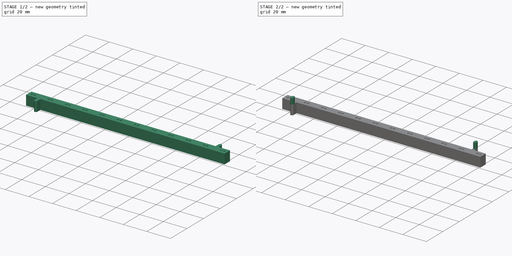
[diagram: build sequence overview — one tinted view per stage of 2, left to right]
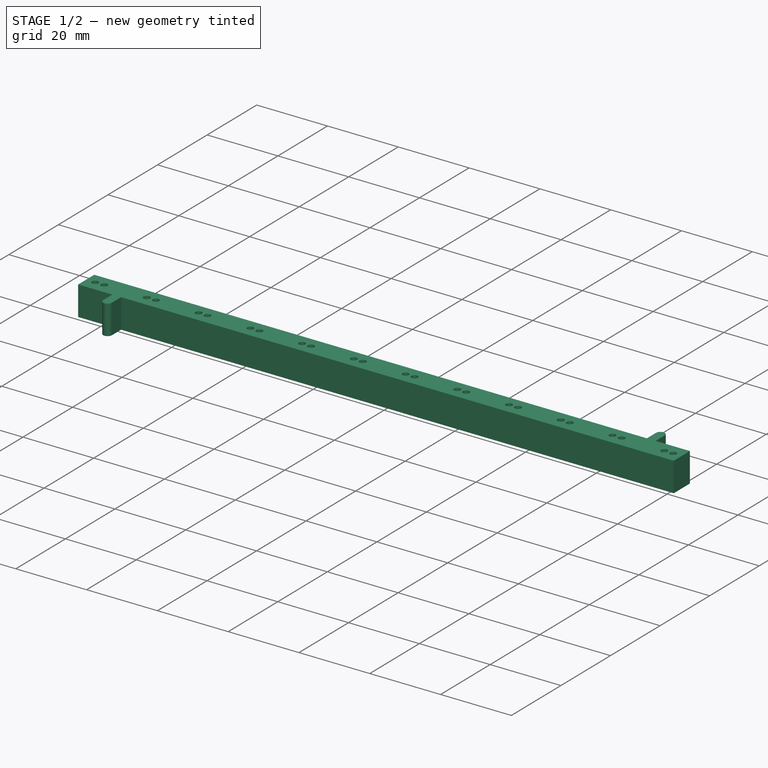
[diagram: stage 1 of 2 — iso view after this stage's code; geometry added in this stage tinted green]
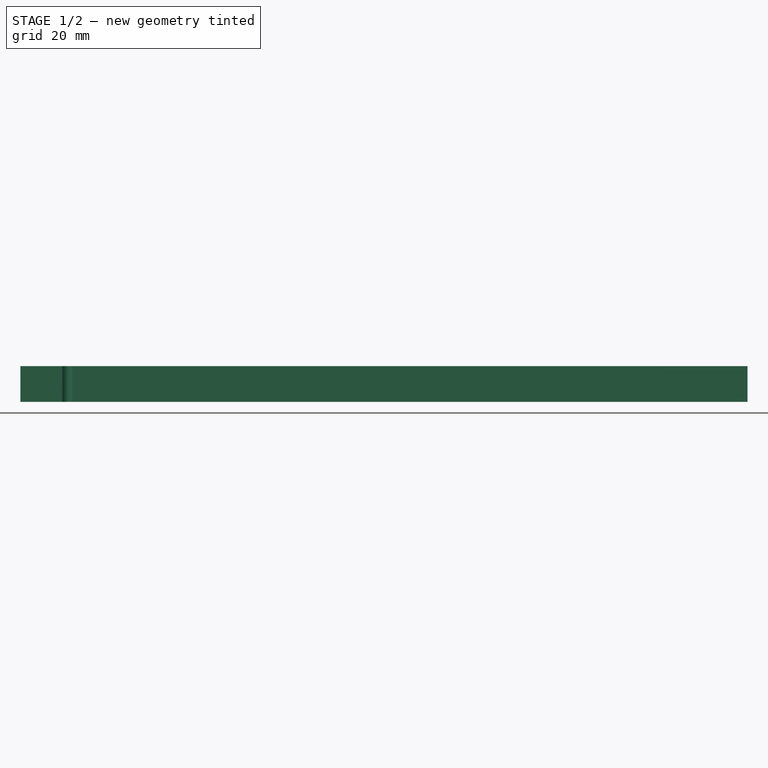
[diagram: stage 1 of 2 — front view after this stage's code; geometry added in this stage tinted green]
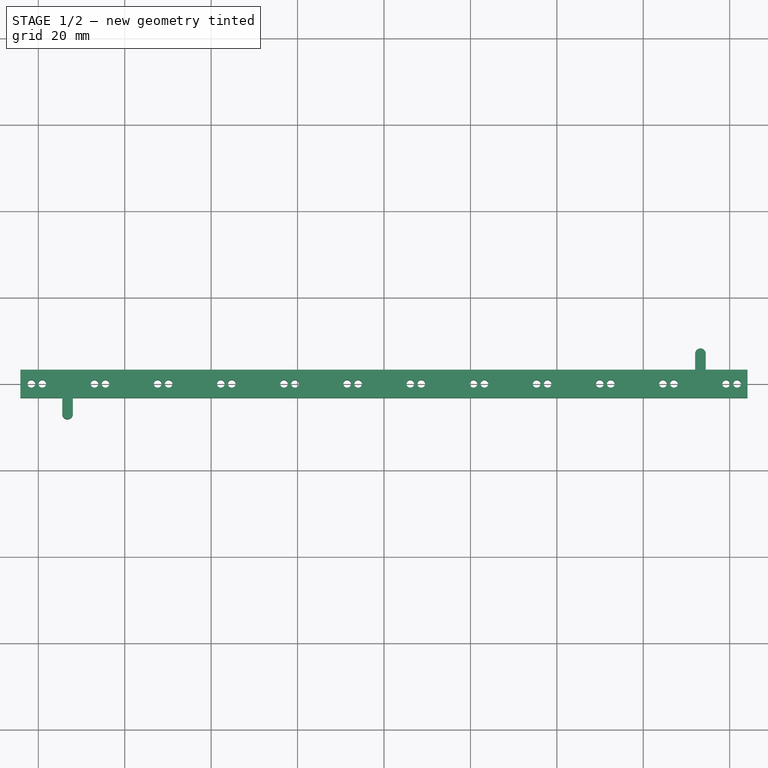
[diagram: stage 1 of 2 — top view after this stage's code; geometry added in this stage tinted green]
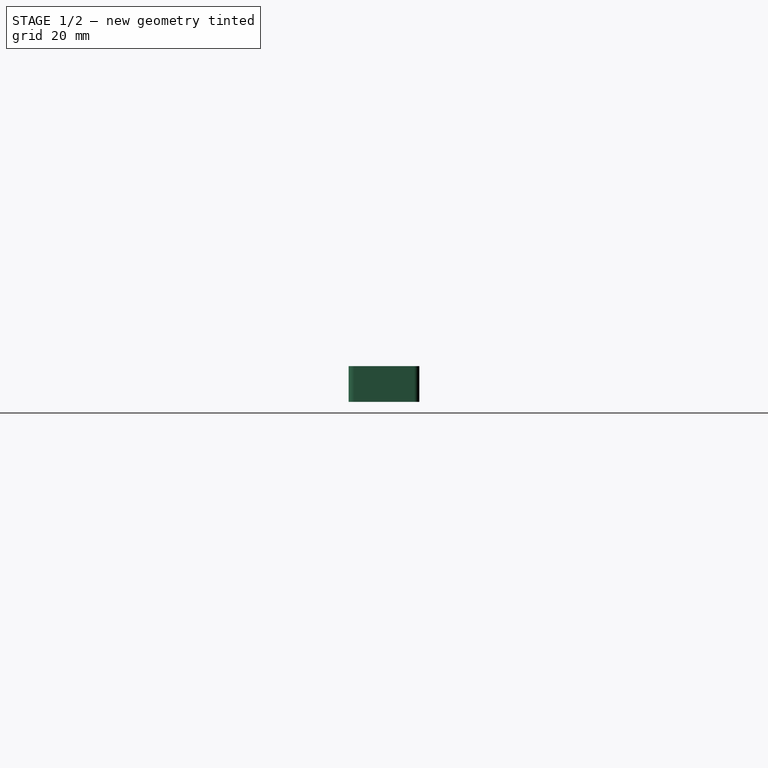
[diagram: stage 1 of 2 — right view after this stage's code; geometry added in this stage tinted green]
FCSTD DOCUMENT  (FreeCAD 0.19R24276 (Git))
Label: distance-columns-led
License: All rights reserved
LicenseURL: http://en.wikipedia.org/wiki/All_rights_reserved
objects: Sketcher::SketchObject×4, PartDesign::Pad×2, PartDesign::Pocket×2, PartDesign::Body×1
note: 13 computed .brp shape members not serialized (recipe doc carries the construction recipe); baked Part::Feature solids carry a one-line shape summary decoded from their .brp

FEATURE [Sketcher::SketchObject] Sketch  label="base"
  FullyConstrained = false
  MapMode = 5
  Support = -> [XY_Plane]
  sketch-geometry (12):
    g0: LineSegment StartX=-84.1375 StartY=3.25 StartZ=0 EndX=72 EndY=3.25 EndZ=0
    g1: LineSegment StartX=84.1375 StartY=3.25 StartZ=0 EndX=84.1375 EndY=-3.25 EndZ=0
    g2: LineSegment StartX=84.1375 StartY=-3.25 StartZ=0 EndX=-72 EndY=-3.25 EndZ=0
    g3: LineSegment StartX=-84.1375 StartY=-3.25 StartZ=0 EndX=-84.1375 EndY=3.25 EndZ=0
    g4: LineSegment StartX=74.47 StartY=3.25001 StartZ=0 EndX=84.1375 EndY=3.25 EndZ=0
    g5: LineSegment StartX=72 StartY=3.25 StartZ=0 EndX=72 EndY=6.94 EndZ=0
    g6: LineSegment StartX=74.47 StartY=6.94001 StartZ=0 EndX=74.47 EndY=3.25001 EndZ=0
    g7: LineSegment StartX=-74.47 StartY=-6.94 StartZ=0 EndX=-74.47 EndY=-3.25 EndZ=0
    g8: LineSegment StartX=-74.47 StartY=-3.25 StartZ=0 EndX=-84.1375 EndY=-3.25 EndZ=0
    g9: LineSegment StartX=-72 StartY=-3.25 StartZ=0 EndX=-72 EndY=-6.94 EndZ=0
    g10: ArcOfCircle CenterX=73.235 CenterY=6.94 CenterZ=0 NormalX=0 NormalY=0 NormalZ=1 AngleXU=0 Radius=1.235 StartAngle=1.18828e-05 EndAngle=3.14159
    g11: ArcOfCircle CenterX=-73.235 CenterY=-6.94 CenterZ=0 NormalX=0 NormalY=0 NormalZ=1 AngleXU=0 Radius=1.235 StartAngle=3.14159 EndAngle=6.28319
  constraints (35):
    c: Coincident(g4,g1)
    c: Coincident(g1,g2)
    c: Coincident(g8,g3)
    c: Coincident(g3,g0)
    c: Horizontal(g0)
    c: Horizontal(g2)
    c: Vertical(g1)
    c: Vertical(g3)
    c: DistanceX(g0,g-1) = 84.1375
    c: DistanceX(g-1,g4) = 84.1375
    c: DistanceY(g-1,g0) = 3.25
    c: DistanceY(g8,g-1) = 3.25
    c: Coincident(g5,g0)
    c: Vertical(g5)
    c: Coincident(g6,g4)
    c: Vertical(g6)
    c: DistanceX(g-1,g5) = 72
    c: Vertical(g7)
    c: DistanceX(g7,g9) = 2.47
    c: DistanceX(g5,g6) = 2.47
    c: DistanceX(g9,g-1) = 72
    c: Coincident(g8,g7)
    c: Tangent(g2,g8)
    c: Coincident(g9,g2)
    c: Vertical(g9)
    c: DistanceY(g9,g9) = 3.69
    c: DistanceY(g7,g7) = 3.69
    c: DistanceY(g5,g5) = 3.69
    c: DistanceY(g6,g6) = 3.69
    c: Coincident(g10,g5)
    c: Coincident(g10,g6)
    c: Coincident(g11,g7)
    c: Coincident(g11,g9)
    c: Radius(g10) = 1.235
    c: Radius(g11) = 1.235
FEATURE [PartDesign::Pad] Pad  label="base_pad"
  Direction = (1,1,1)
  Length = 8.3
  Length2 = 100
  Profile = -> Sketch
  Type = 0
FEATURE [Sketcher::SketchObject] Sketch001  label="hole"
  FullyConstrained = true
  MapMode = 5
  Placement = pos=(0,0,8.3) rot=(0,0,1;0rad)
  Support = -> [Pad]
  sketch-geometry (24):
    g0: Circle CenterX=-81.61 CenterY=0 CenterZ=0 NormalX=0 NormalY=0 NormalZ=1 AngleXU=0 Radius=0.9
    g1: Circle CenterX=-79.07 CenterY=0 CenterZ=0 NormalX=0 NormalY=0 NormalZ=1 AngleXU=0 Radius=0.9
    g2: Circle CenterX=-66.993 CenterY=0 CenterZ=0 NormalX=0 NormalY=0 NormalZ=1 AngleXU=0 Radius=0.9
    g3: Circle CenterX=-64.453 CenterY=0 CenterZ=0 NormalX=0 NormalY=0 NormalZ=1 AngleXU=0 Radius=0.9
    g4: Circle CenterX=-52.376 CenterY=0 CenterZ=0 NormalX=0 NormalY=0 NormalZ=1 AngleXU=0 Radius=0.9
    g5: Circle CenterX=-49.836 CenterY=0 CenterZ=0 NormalX=0 NormalY=0 NormalZ=1 AngleXU=0 Radius=0.9
    g6: Circle CenterX=-37.759 CenterY=0 CenterZ=0 NormalX=0 NormalY=0 NormalZ=1 AngleXU=0 Radius=0.9
    g7: Circle CenterX=-35.219 CenterY=0 CenterZ=0 NormalX=0 NormalY=0 NormalZ=1 AngleXU=0 Radius=0.9
    g8: Circle CenterX=-23.142 CenterY=0 CenterZ=0 NormalX=0 NormalY=0 NormalZ=1 AngleXU=0 Radius=0.9
    g9: Circle CenterX=-20.602 CenterY=0 CenterZ=0 NormalX=0 NormalY=0 NormalZ=1 AngleXU=0 Radius=0.9
    g10: Circle CenterX=-8.525 CenterY=0 CenterZ=0 NormalX=0 NormalY=0 NormalZ=1 AngleXU=0 Radius=0.9
    g11: Circle CenterX=-5.985 CenterY=0 CenterZ=0 NormalX=0 NormalY=0 NormalZ=1 AngleXU=0 Radius=0.9
    g12: Circle CenterX=6.092 CenterY=0 CenterZ=0 NormalX=0 NormalY=0 NormalZ=1 AngleXU=0 Radius=0.9
    g13: Circle CenterX=8.632 CenterY=0 CenterZ=0 NormalX=0 NormalY=0 NormalZ=1 AngleXU=0 Radius=0.9
    g14: Circle CenterX=20.709 CenterY=0 CenterZ=0 NormalX=0 NormalY=0 NormalZ=1 AngleXU=0 Radius=0.9
    g15: Circle CenterX=23.249 CenterY=0 CenterZ=0 NormalX=0 NormalY=0 NormalZ=1 AngleXU=0 Radius=0.9
    g16: Circle CenterX=35.326 CenterY=0 CenterZ=0 NormalX=0 NormalY=0 NormalZ=1 AngleXU=0 Radius=0.9
    g17: Circle CenterX=37.866 CenterY=0 CenterZ=0 NormalX=0 NormalY=0 NormalZ=1 AngleXU=0 Radius=0.9
    g18: Circle CenterX=49.943 CenterY=0 CenterZ=0 NormalX=0 NormalY=0 NormalZ=1 AngleXU=0 Radius=0.9
    g19: Circle CenterX=52.483 CenterY=0 CenterZ=0 NormalX=0 NormalY=0 NormalZ=1 AngleXU=0 Radius=0.9
    g20: Circle CenterX=64.56 CenterY=0 CenterZ=0 NormalX=0 NormalY=0 NormalZ=1 AngleXU=0 Radius=0.9
    g21: Circle CenterX=67.1 CenterY=0 CenterZ=0 NormalX=0 NormalY=0 NormalZ=1 AngleXU=0 Radius=0.9
    g22: Circle CenterX=79.177 CenterY=0 CenterZ=0 NormalX=0 NormalY=0 NormalZ=1 AngleXU=0 Radius=0.9
    g23: Circle CenterX=81.717 CenterY=0 CenterZ=0 NormalX=0 NormalY=0 NormalZ=1 AngleXU=0 Radius=0.9
  constraints (72):
    c: PointOnObject(g0,g-1)
    c: PointOnObject(g1,g-1)
    c: Radius(g0) = 0.9
    c: Radius(g1) = 0.9
    c: DistanceX(g0,g1) = 2.54
    c: DistanceX(g0,g-1) = 81.61
    c: PointOnObject(g2,g-1)
    c: PointOnObject(g3,g-1)
    c: PointOnObject(g4,g-1)
    c: PointOnObject(g5,g-1)
    c: PointOnObject(g6,g-1)
    c: PointOnObject(g7,g-1)
    c: PointOnObject(g8,g-1)
    c: PointOnObject(g9,g-1)
    c: Radius(g2) = 0.9
    c: Radius(g3) = 0.9
    c: Radius(g4) = 0.9
    c: Radius(g5) = 0.9
    c: Radius(g6) = 0.9
    c: Radius(g7) = 0.9
    c: Radius(g8) = 0.9
    c: Radius(g9) = 0.9
    c: DistanceX(g2,g3) = 2.54
    c: DistanceX(g4,g5) = 2.54
    c: DistanceX(g6,g7) = 2.54
    c: DistanceX(g8,g9) = 2.54
    c: DistanceX(g1,g2) = 12.077
    c: DistanceX(g3,g4) = 12.077
    c: DistanceX(g5,g6) = 12.077
    c: DistanceX(g7,g8) = 12.077
    c: PointOnObject(g10,g-1)
    c: PointOnObject(g11,g-1)
    c: Radius(g10) = 0.9
    c: Radius(g11) = 0.9
    c: DistanceX(g10,g11) = 2.54
    c: DistanceX(g9,g10) = 12.077
    c: PointOnObject(g12,g-1)
    c: PointOnObject(g13,g-1)
    c: PointOnObject(g14,g-1)
    c: PointOnObject(g15,g-1)
    c: PointOnObject(g16,g-1)
    c: PointOnObject(g17,g-1)
    c: Radius(g12) = 0.9
    c: Radius(g13) = 0.9
    c: Radius(g14) = 0.9
    c: Radius(g15) = 0.9
    c: Radius(g16) = 0.9
    c: Radius(g17) = 0.9
    c: DistanceX(g12,g13) = 2.54
    c: DistanceX(g14,g15) = 2.54
    c: DistanceX(g16,g17) = 2.54
    c: DistanceX(g11,g12) = 12.077
    c: DistanceX(g13,g14) = 12.077
    c: DistanceX(g15,g16) = 12.077
    c: PointOnObject(g18,g-1)
    c: PointOnObject(g19,g-1)
    c: PointOnObject(g20,g-1)
    c: PointOnObject(g21,g-1)
    c: Radius(g18) = 0.9
    c: Radius(g19) = 0.9
    c: Radius(g20) = 0.9
    c: Radius(g21) = 0.9
    c: DistanceX(g18,g19) = 2.54
    c: DistanceX(g20,g21) = 2.54
    c: DistanceX(g17,g18) = 12.077
    c: DistanceX(g19,g20) = 12.077
    c: PointOnObject(g22,g-1)
    c: PointOnObject(g23,g-1)
    c: Radius(g22) = 0.9
    c: Radius(g23) = 0.9
    c: DistanceX(g22,g23) = 2.54
    c: DistanceX(g21,g22) = 12.077
FEATURE [PartDesign::Pocket] Pocket  label="hole_pocket"
  BaseFeature = -> Pad
  Length = 10
  Length2 = 100
  Profile = -> Sketch001
  Type = 0
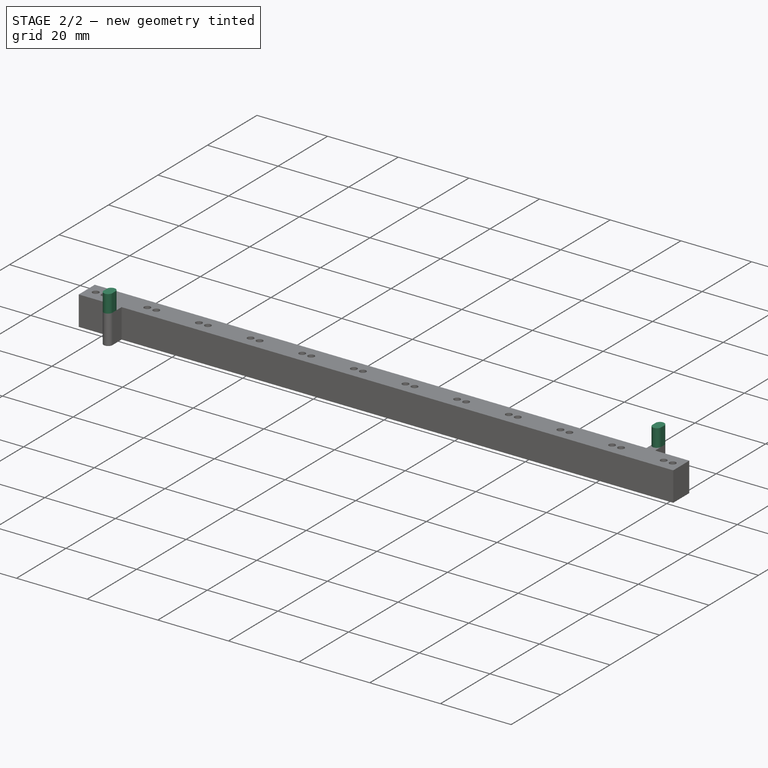
[diagram: stage 2 of 2 — iso view after this stage's code; geometry added in this stage tinted green]
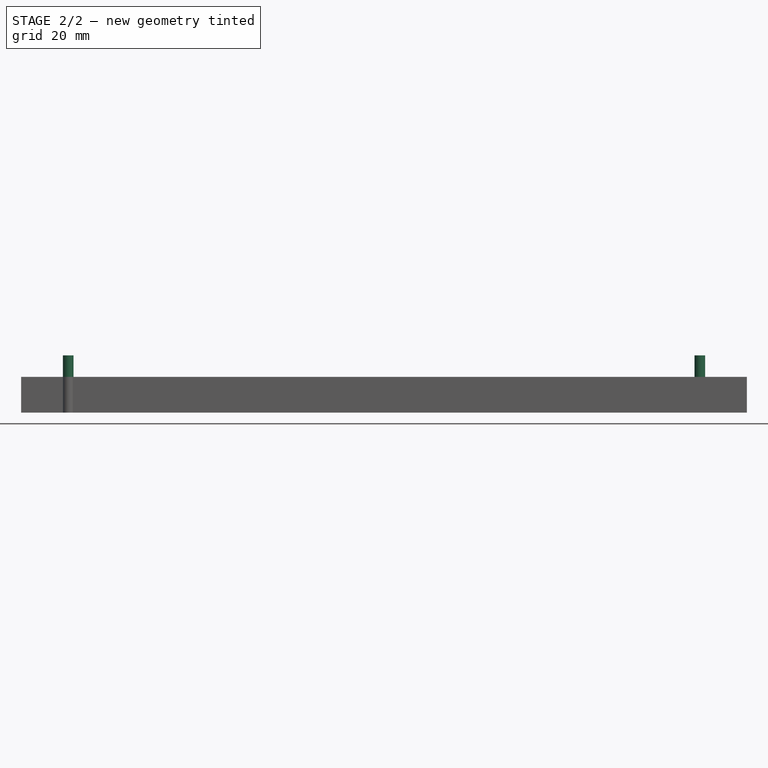
[diagram: stage 2 of 2 — front view after this stage's code; geometry added in this stage tinted green]
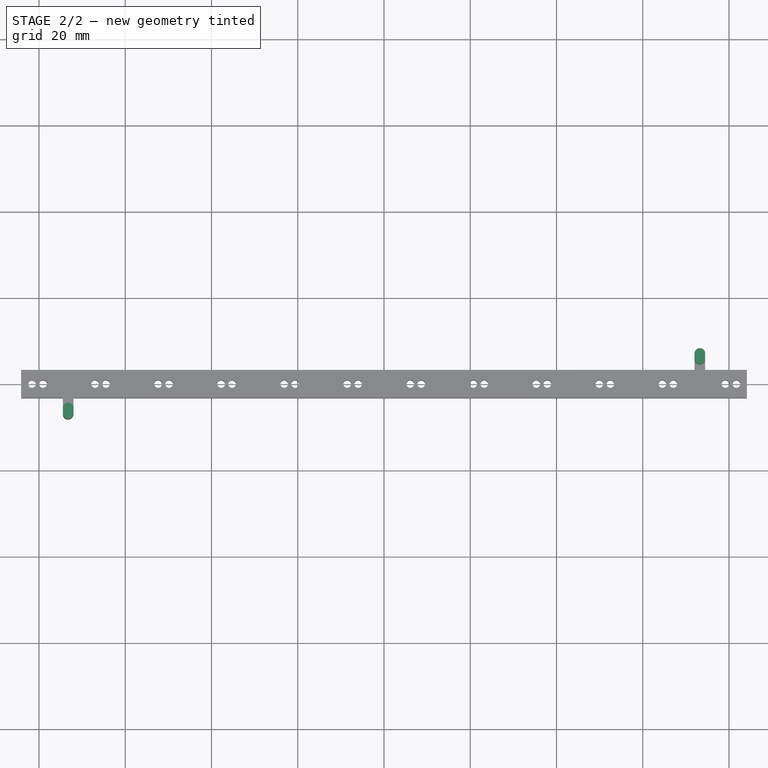
[diagram: stage 2 of 2 — top view after this stage's code; geometry added in this stage tinted green]
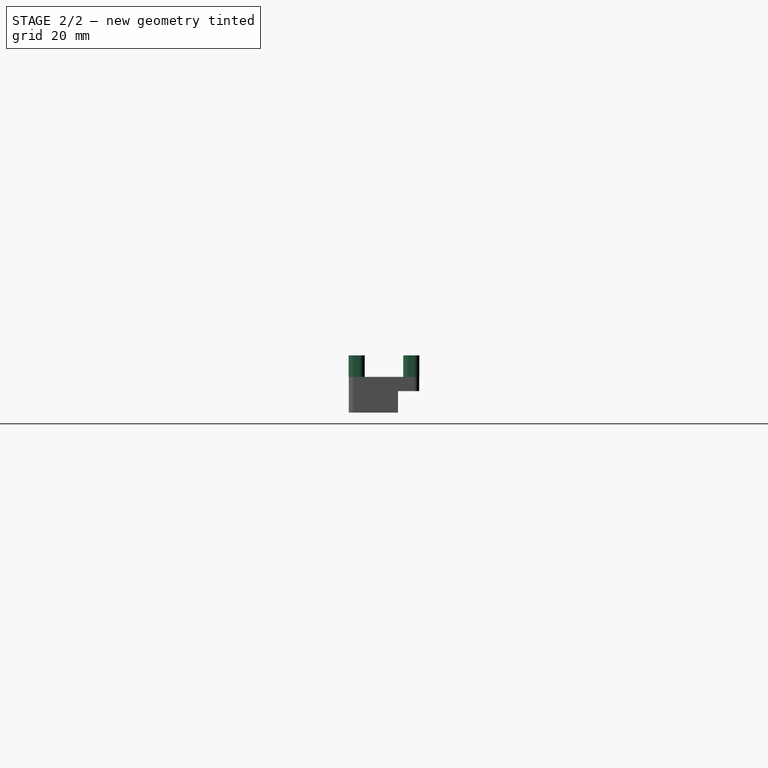
[diagram: stage 2 of 2 — right view after this stage's code; geometry added in this stage tinted green]
FEATURE [Sketcher::SketchObject] Sketch002  label="holder"
  FullyConstrained = false
  MapMode = 5
  Placement = pos=(0,0,8.3) rot=(0,0,1;0rad)
  Support = -> [Pocket]
  sketch-geometry (8):
    g0: LineSegment StartX=74.47 StartY=6.97 StartZ=0 EndX=74.47 EndY=5.7 EndZ=0
    g1: LineSegment StartX=72 StartY=5.7 StartZ=0 EndX=72 EndY=6.97 EndZ=0
    g2: ArcOfCircle CenterX=73.235 CenterY=5.7 CenterZ=0 NormalX=0 NormalY=0 NormalZ=1 AngleXU=0 Radius=1.235 StartAngle=3.14159 EndAngle=6.28319
    g3: ArcOfCircle CenterX=73.235 CenterY=6.96999 CenterZ=0 NormalX=0 NormalY=0 NormalZ=1 AngleXU=0 Radius=1.235 StartAngle=6.57598e-06 EndAngle=3.14159
    g4: LineSegment StartX=-72 StartY=-5.7 StartZ=0 EndX=-72 EndY=-6.97 EndZ=0
    g5: LineSegment StartX=-74.47 StartY=-6.97 StartZ=0 EndX=-74.47 EndY=-5.7 EndZ=0
    g6: ArcOfCircle CenterX=-73.235 CenterY=-6.97 CenterZ=0 NormalX=0 NormalY=0 NormalZ=1 AngleXU=0 Radius=1.235 StartAngle=3.14159 EndAngle=6.28319
    g7: ArcOfCircle CenterX=-73.235 CenterY=-5.7 CenterZ=0 NormalX=0 NormalY=0 NormalZ=1 AngleXU=0 Radius=1.235 StartAngle=-2.31e-14 EndAngle=3.14159
  constraints (23):
    c: Vertical(g0)
    c: Vertical(g1)
    c: DistanceX(g1,g0) = 2.47
    c: DistanceY(g0,g0) = 1.27
    c: DistanceX(g-1,g1) = 72
    c: DistanceY(g-1,g1) = 5.7
    c: DistanceY(g1,g1) = 1.27
    c: DistanceY(g-1,g0) = 5.7
    c: Coincident(g2,g1)
    c: Coincident(g2,g0)
    c: Radius(g2) = 1.235
    c: Coincident(g3,g1)
    c: Coincident(g3,g0)
    c: Radius(g3) = 1.235
    c: Vertical(g4)
    c: Vertical(g5)
    c: DistanceX(g5,g4) = 2.47
    c: DistanceY(g5,g5) = 1.27
    c: DistanceY(g4,g-1) = 5.7
    c: DistanceX(g4,g-1) = 72
    c: Coincident(g6,g4)
    c: Radius(g6) = 1.235
    c: Radius(g7) = 1.235
FEATURE [PartDesign::Pad] Pad001  label="holder_pad"
  BaseFeature = -> Pocket
  Direction = (1,1,1)
  Length = 5
  Length2 = 100
  Profile = -> Sketch002
  Type = 0
FEATURE [Sketcher::SketchObject] Sketch003  label="remove"
  FullyConstrained = false
  MapMode = 5
  Placement = pos=(0,0,0) rot=(1,0,0;3.14159rad)
  Support = -> [Pad001]
  sketch-geometry (4):
    g0: LineSegment StartX=69.336 StartY=-3.25 StartZ=0 EndX=77.3376 EndY=-3.25 EndZ=0
    g1: LineSegment StartX=77.3376 StartY=-3.25 StartZ=0 EndX=77.3376 EndY=-10.1129 EndZ=0
    g2: LineSegment StartX=77.3376 StartY=-10.1129 StartZ=0 EndX=69.336 EndY=-10.1129 EndZ=0
    g3: LineSegment StartX=69.336 StartY=-10.1129 StartZ=0 EndX=69.336 EndY=-3.25 EndZ=0
  constraints (9):
    c: Coincident(g0,g1)
    c: Coincident(g1,g2)
    c: Coincident(g2,g3)
    c: Coincident(g3,g0)
    c: Horizontal(g0)
    c: Horizontal(g2)
    c: Vertical(g1)
    c: Vertical(g3)
    c: DistanceY(g0,g-1) = 3.25
FEATURE [PartDesign::Pocket] Pocket001  label="remove_pocket"
  BaseFeature = -> Pad001
  Length = 5
  Length2 = 100
  Profile = -> Sketch003
  Type = 0
FEATURE [PartDesign::Body] Body
  Group = -> [Sketch,Pad,Sketch001,Pocket,Sketch002,Pad001,Sketch003,Pocket001]
  Origin = -> Origin
  Tip = -> Pocket001
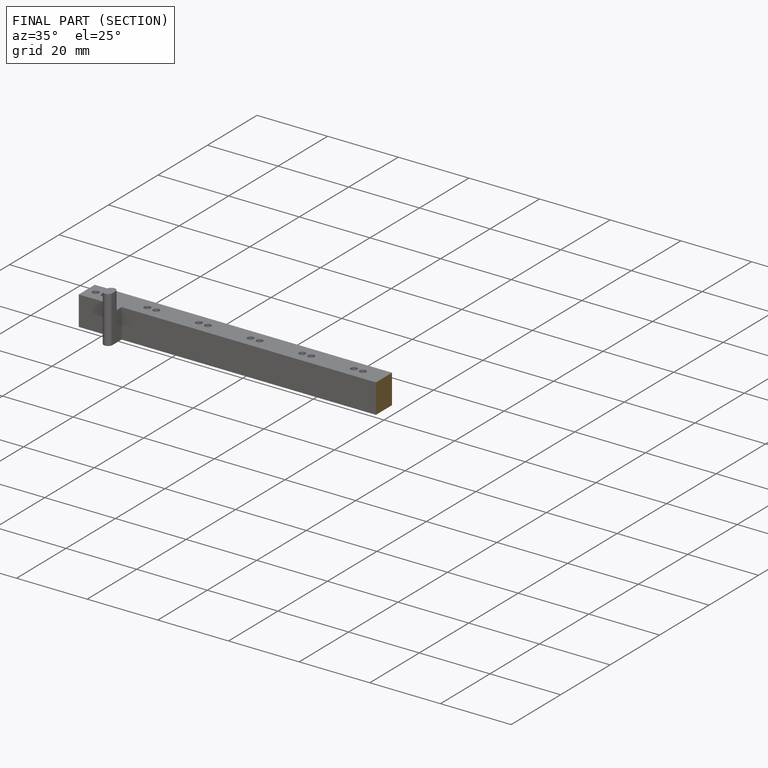
[diagram: finished part — half-section view (interior)]
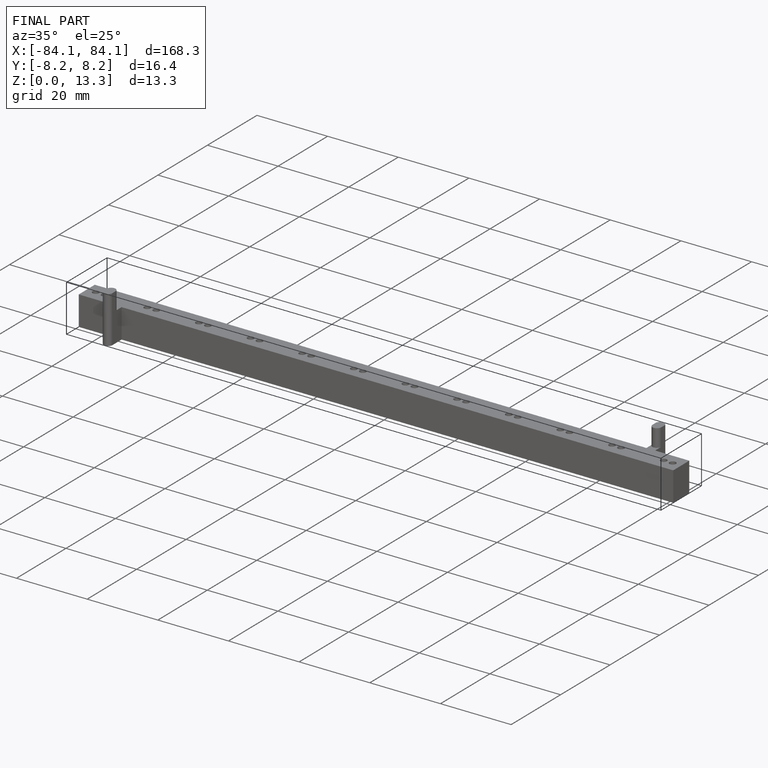
[diagram: finished part — iso view with bounding-box wireframe]
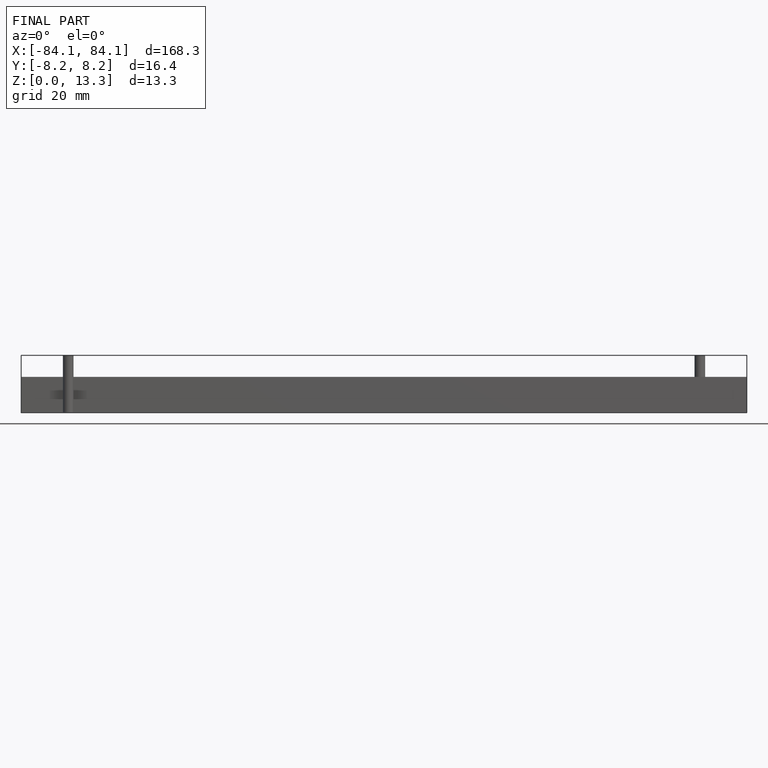
[diagram: finished part — front view with bounding-box wireframe]
